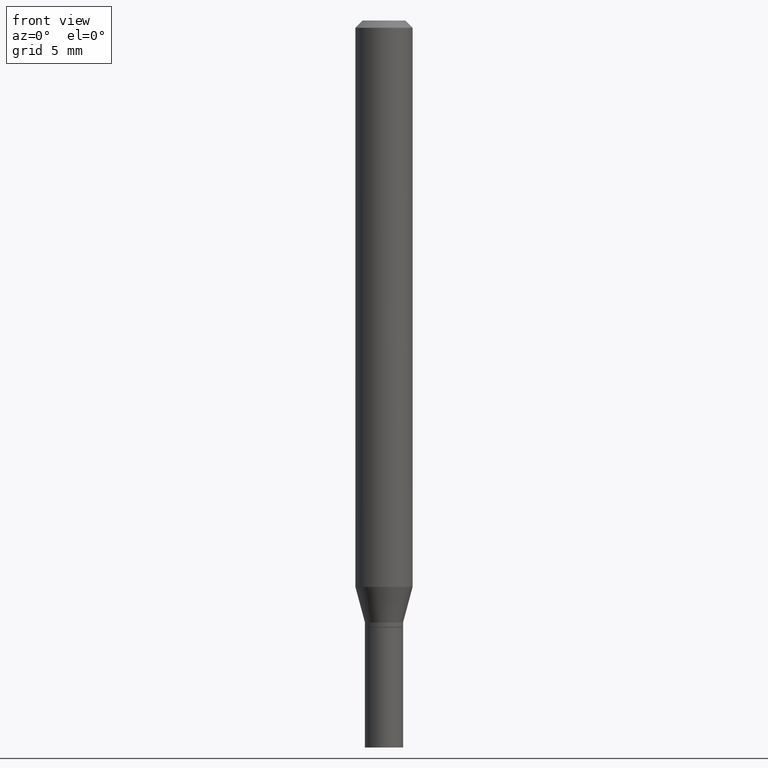
[diagram: clean part render]
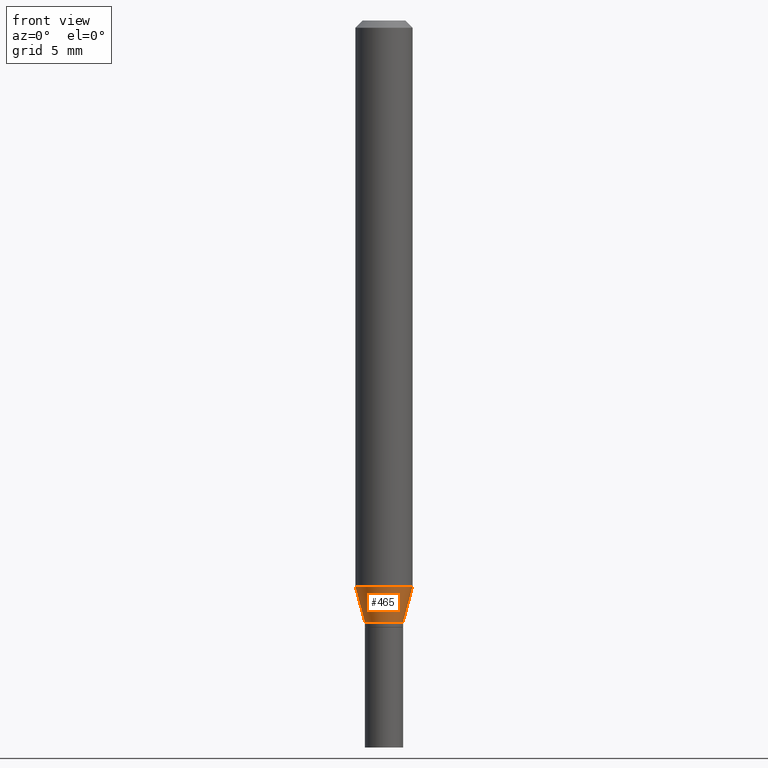
[diagram: same view with one face highlighted and labeled with its STEP entity id]
A machine part, front view. The second image highlights one B-rep face of the part: STEP entity #465.
In plain terms, the highlighted conical surface has half-angle 15 deg.
Its self-contained STEP definition (entity closure, byte-faithful):
#12 = DIRECTION ( 'NONE',  ( 0.2588190451025215721, 1.565188264969619995E-15, 0.9659258262890679791 ) ) ;
#16 = CARTESIAN_POINT ( 'NONE',  ( 0.05904999999999999832, -4.492065169680809250E-15, -1.168478599090893244 ) ) ;
#20 = EDGE_CURVE ( 'NONE', #302, #59, #130, .T. ) ;
#21 = DIRECTION ( 'NONE',  ( 1.000000000000000000, -6.982962677686269077E-15, 0.000000000000000000 ) ) ;
#29 = CARTESIAN_POINT ( 'NONE',  ( 3.037272257281939846E-29, -4.336419822843186836E-15, -1.241999999999999993 ) ) ;
#34 = EDGE_CURVE ( 'NONE', #299, #302, #336, .T. ) ;
#50 = ORIENTED_EDGE ( 'NONE', *, *, #20, .T. ) ;
#55 = DIRECTION ( 'NONE',  ( -2.445468806185136597E-29, 3.491481338843145583E-15, 1.000000000000000000 ) ) ;
#59 = VERTEX_POINT ( 'NONE', #16 ) ;
#92 = CARTESIAN_POINT ( 'NONE',  ( 0.03934999999999993364, -4.611199404210140965E-15, -1.241999999999999993 ) ) ;
#100 = DIRECTION ( 'NONE',  ( 1.000000000000000000, -6.982962677686273021E-15, 0.000000000000000000 ) ) ;
#114 = DIRECTION ( 'NONE',  ( 1.000000000000000000, -6.982962677686269077E-15, 0.000000000000000000 ) ) ;
#127 = ORIENTED_EDGE ( 'NONE', *, *, #34, .T. ) ;
#130 = LINE ( 'NONE', #92, #275 ) ;
#135 = CONICAL_SURFACE ( 'NONE', #424, 0.03934999999999993364, 0.2617993877991502960 ) ;
#162 = CARTESIAN_POINT ( 'NONE',  ( 3.037272257281939846E-29, -4.336419822843186836E-15, -1.241999999999999993 ) ) ;
#175 = CARTESIAN_POINT ( 'NONE',  ( -0.03934999999999993364, -3.858483497209341928E-15, -1.241999999999999993 ) ) ;
#237 = EDGE_CURVE ( 'NONE', #409, #59, #261, .T. ) ;
#246 = DIRECTION ( 'NONE',  ( -2.445468806185136597E-29, 3.491481338843145583E-15, 1.000000000000000000 ) ) ;
#261 = CIRCLE ( 'NONE', #432, 0.05904999999999999832 ) ;
#265 = AXIS2_PLACEMENT_3D ( 'NONE', #162, #268, #21 ) ;
#268 = DIRECTION ( 'NONE',  ( -2.445468806185136597E-29, 3.491481338843145583E-15, 1.000000000000000000 ) ) ;
#275 = VECTOR ( 'NONE', #12, 39.37007874015748143 ) ;
#276 = ORIENTED_EDGE ( 'NONE', *, *, #329, .F. ) ;
#277 = CARTESIAN_POINT ( 'NONE',  ( -0.03934999999999993364, -4.056821256321588230E-15, -1.241999999999999993 ) ) ;
#299 = VERTEX_POINT ( 'NONE', #175 ) ;
#302 = VERTEX_POINT ( 'NONE', #380 ) ;
#329 = EDGE_CURVE ( 'NONE', #299, #409, #412, .T. ) ;
#336 = CIRCLE ( 'NONE', #265, 0.03934999999999993364 ) ;
#354 = DIRECTION ( 'NONE',  ( -0.2588190451025215721, 5.211531920934551831E-15, 0.9659258262890679791 ) ) ;
#380 = CARTESIAN_POINT ( 'NONE',  ( 0.03934999999999993364, -4.611199404210140965E-15, -1.241999999999999993 ) ) ;
#384 = EDGE_LOOP ( 'NONE', ( #276, #127, #50, #399 ) ) ;
#394 = VECTOR ( 'NONE', #354, 39.37007874015748143 ) ;
#399 = ORIENTED_EDGE ( 'NONE', *, *, #237, .F. ) ;
#409 = VERTEX_POINT ( 'NONE', #421 ) ;
#412 = LINE ( 'NONE', #277, #394 ) ;
#419 = CARTESIAN_POINT ( 'NONE',  ( 2.857477964771687293E-29, -4.079721223563434330E-15, -1.168478599090893244 ) ) ;
#421 = CARTESIAN_POINT ( 'NONE',  ( -0.05904999999999999832, -3.660145738097095626E-15, -1.168478599090893244 ) ) ;
#424 = AXIS2_PLACEMENT_3D ( 'NONE', #29, #246, #114 ) ;
#432 = AXIS2_PLACEMENT_3D ( 'NONE', #419, #55, #100 ) ;
#461 = FACE_OUTER_BOUND ( 'NONE', #384, .T. ) ;
#465 = ADVANCED_FACE ( 'NONE', ( #461 ), #135, .T. ) ;